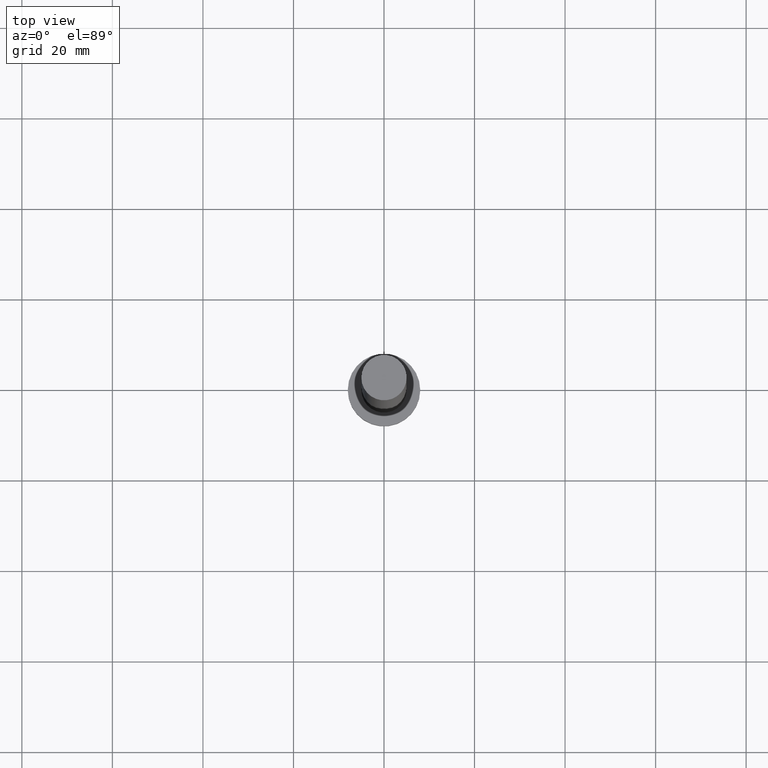
[diagram: clean part render]
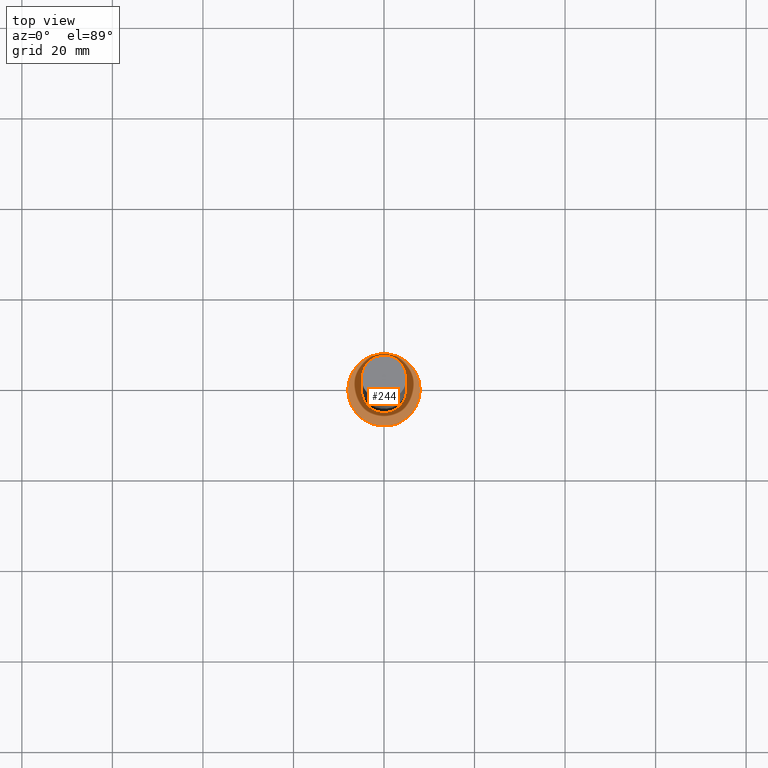
[diagram: same view with one face highlighted and labeled with its STEP entity id]
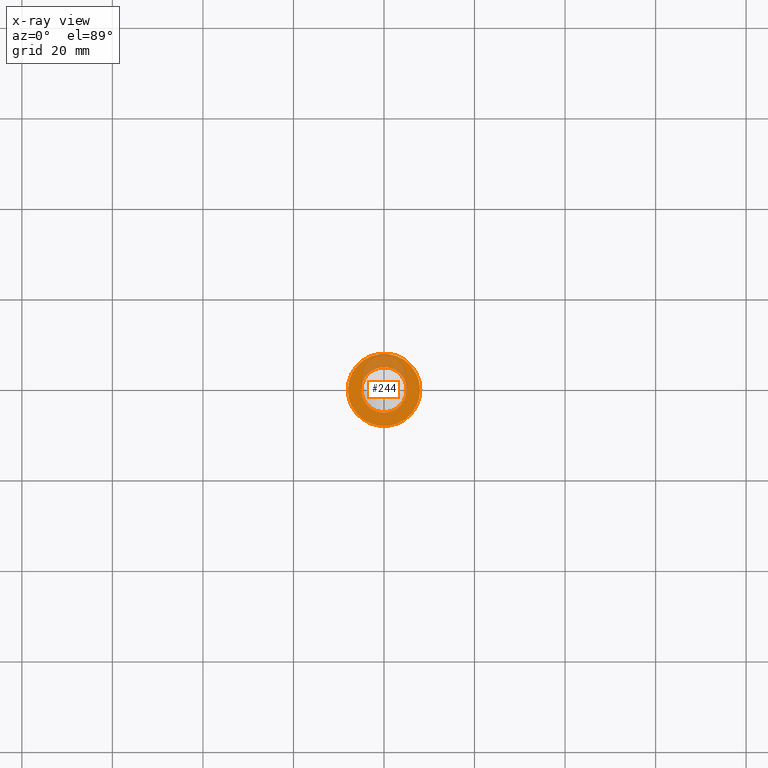
[diagram: x-ray of the same camera — body ghosted, the highlighted face saturated]
A machine part, top view. The second image highlights one B-rep face of the part: STEP entity #244.
The next image is the same camera in x-ray: the body ghosted, the highlighted face saturated — about 22% of this face is hidden behind the body in this view.
In plain terms, the highlighted planar face has unit normal (0, 0, 1).
Its self-contained STEP definition (entity closure, byte-faithful):
#11 = CARTESIAN_POINT ( 'NONE',  ( 5.000000000000000000, 6.123233995736766282E-16, 5.000000000000000000 ) ) ;
#12 = DIRECTION ( 'NONE',  ( 0.000000000000000000, 0.000000000000000000, 1.000000000000000000 ) ) ;
#21 = DIRECTION ( 'NONE',  ( 1.000000000000000000, 0.000000000000000000, 0.000000000000000000 ) ) ;
#23 = CIRCLE ( 'NONE', #64, 5.000000000000000000 ) ;
#26 = DIRECTION ( 'NONE',  ( 0.000000000000000000, 0.000000000000000000, 1.000000000000000000 ) ) ;
#38 = AXIS2_PLACEMENT_3D ( 'NONE', #238, #12, #160 ) ;
#41 = ORIENTED_EDGE ( 'NONE', *, *, #62, .T. ) ;
#48 = CARTESIAN_POINT ( 'NONE',  ( 0.000000000000000000, 0.000000000000000000, 5.000000000000000000 ) ) ;
#54 = DIRECTION ( 'NONE',  ( 1.000000000000000000, 0.000000000000000000, 0.000000000000000000 ) ) ;
#57 = ORIENTED_EDGE ( 'NONE', *, *, #131, .F. ) ;
#62 = EDGE_CURVE ( 'NONE', #109, #78, #186, .T. ) ;
#64 = AXIS2_PLACEMENT_3D ( 'NONE', #48, #185, #21 ) ;
#78 = VERTEX_POINT ( 'NONE', #138 ) ;
#86 = CARTESIAN_POINT ( 'NONE',  ( -5.000000000000000000, 0.000000000000000000, 5.000000000000000000 ) ) ;
#104 = AXIS2_PLACEMENT_3D ( 'NONE', #245, #189, #247 ) ;
#107 = DIRECTION ( 'NONE',  ( 1.000000000000000000, 0.000000000000000000, -0.000000000000000000 ) ) ;
#109 = VERTEX_POINT ( 'NONE', #188 ) ;
#121 = CARTESIAN_POINT ( 'NONE',  ( 0.000000000000000000, 0.000000000000000000, 5.000000000000000000 ) ) ;
#125 = ORIENTED_EDGE ( 'NONE', *, *, #187, .F. ) ;
#126 = EDGE_LOOP ( 'NONE', ( #125, #57 ) ) ;
#127 = AXIS2_PLACEMENT_3D ( 'NONE', #121, #26, #107 ) ;
#131 = EDGE_CURVE ( 'NONE', #154, #161, #213, .T. ) ;
#132 = DIRECTION ( 'NONE',  ( 0.000000000000000000, 0.000000000000000000, 1.000000000000000000 ) ) ;
#138 = CARTESIAN_POINT ( 'NONE',  ( -8.000000000000000000, 0.000000000000000000, 5.000000000000000000 ) ) ;
#151 = FACE_BOUND ( 'NONE', #126, .T. ) ;
#153 = CARTESIAN_POINT ( 'NONE',  ( 0.000000000000000000, 0.000000000000000000, 5.000000000000000000 ) ) ;
#154 = VERTEX_POINT ( 'NONE', #11 ) ;
#160 = DIRECTION ( 'NONE',  ( 1.000000000000000000, 0.000000000000000000, 0.000000000000000000 ) ) ;
#161 = VERTEX_POINT ( 'NONE', #86 ) ;
#168 = CIRCLE ( 'NONE', #104, 8.000000000000000000 ) ;
#174 = EDGE_LOOP ( 'NONE', ( #235, #41 ) ) ;
#185 = DIRECTION ( 'NONE',  ( 0.000000000000000000, 0.000000000000000000, 1.000000000000000000 ) ) ;
#186 = CIRCLE ( 'NONE', #38, 8.000000000000000000 ) ;
#187 = EDGE_CURVE ( 'NONE', #161, #154, #23, .T. ) ;
#188 = CARTESIAN_POINT ( 'NONE',  ( 8.000000000000000000, 9.797174393178825657E-16, 5.000000000000000000 ) ) ;
#189 = DIRECTION ( 'NONE',  ( 0.000000000000000000, 0.000000000000000000, 1.000000000000000000 ) ) ;
#213 = CIRCLE ( 'NONE', #255, 5.000000000000000000 ) ;
#214 = FACE_OUTER_BOUND ( 'NONE', #174, .T. ) ;
#216 = PLANE ( 'NONE',  #127 ) ;
#235 = ORIENTED_EDGE ( 'NONE', *, *, #241, .T. ) ;
#238 = CARTESIAN_POINT ( 'NONE',  ( 0.000000000000000000, 0.000000000000000000, 5.000000000000000000 ) ) ;
#241 = EDGE_CURVE ( 'NONE', #78, #109, #168, .T. ) ;
#244 = ADVANCED_FACE ( 'NONE', ( #151, #214 ), #216, .T. ) ;
#245 = CARTESIAN_POINT ( 'NONE',  ( 0.000000000000000000, 0.000000000000000000, 5.000000000000000000 ) ) ;
#247 = DIRECTION ( 'NONE',  ( 1.000000000000000000, 0.000000000000000000, 0.000000000000000000 ) ) ;
#255 = AXIS2_PLACEMENT_3D ( 'NONE', #153, #132, #54 ) ;